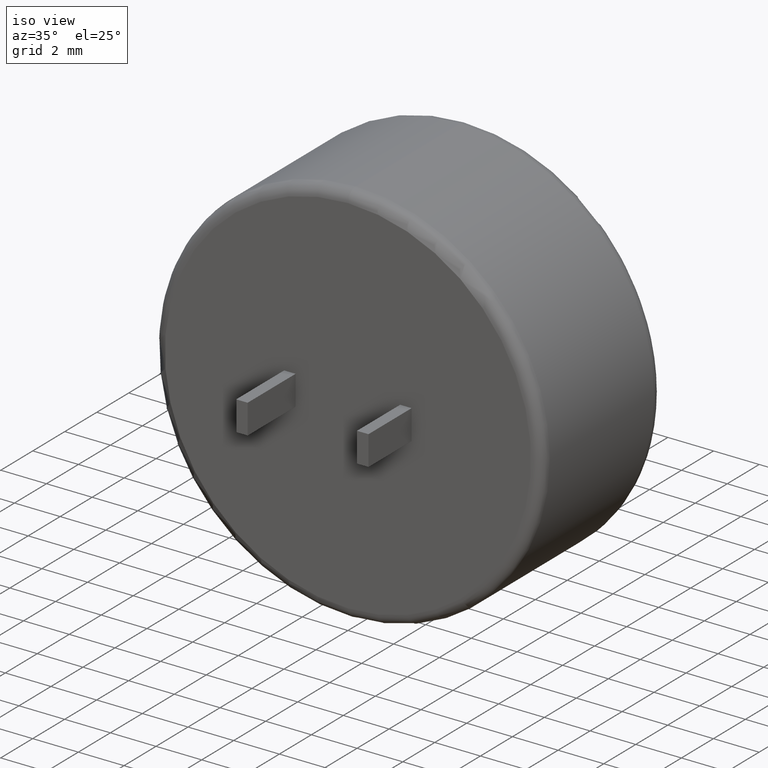
[diagram: clean part render]
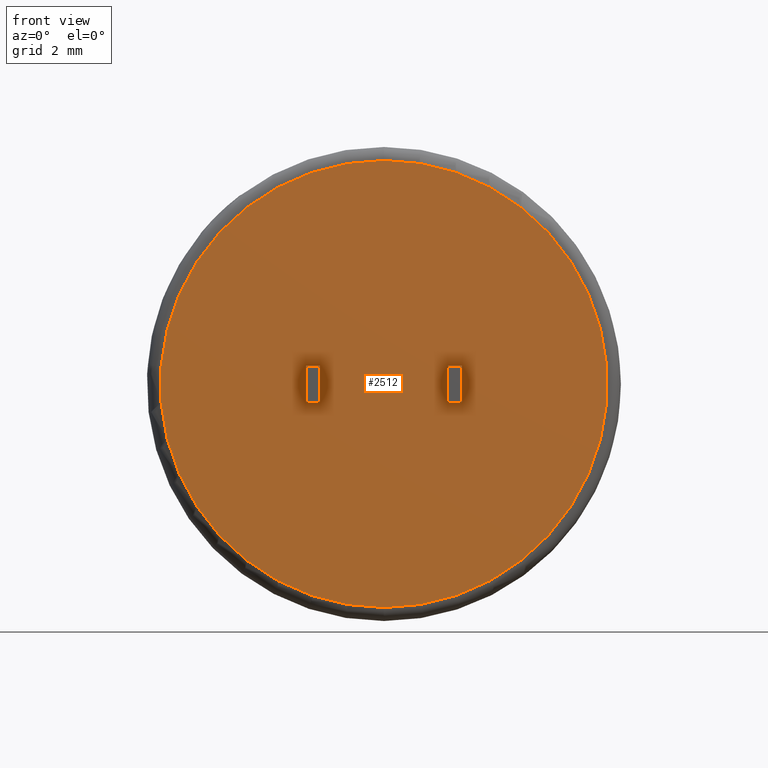
[diagram: tour spotlight — one face highlighted and labeled with its STEP entity id]
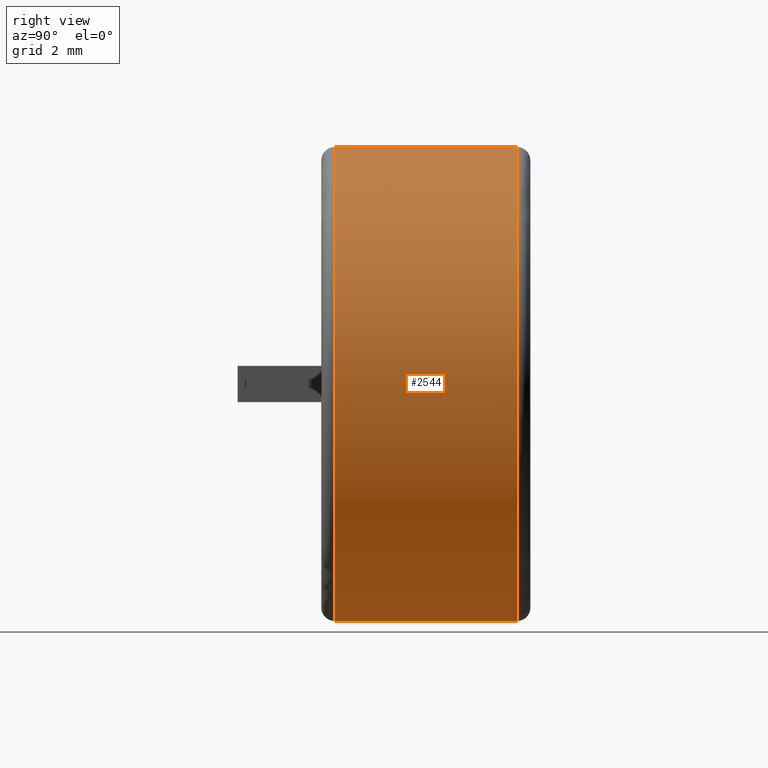
[diagram: tour spotlight — one face highlighted and labeled with its STEP entity id]
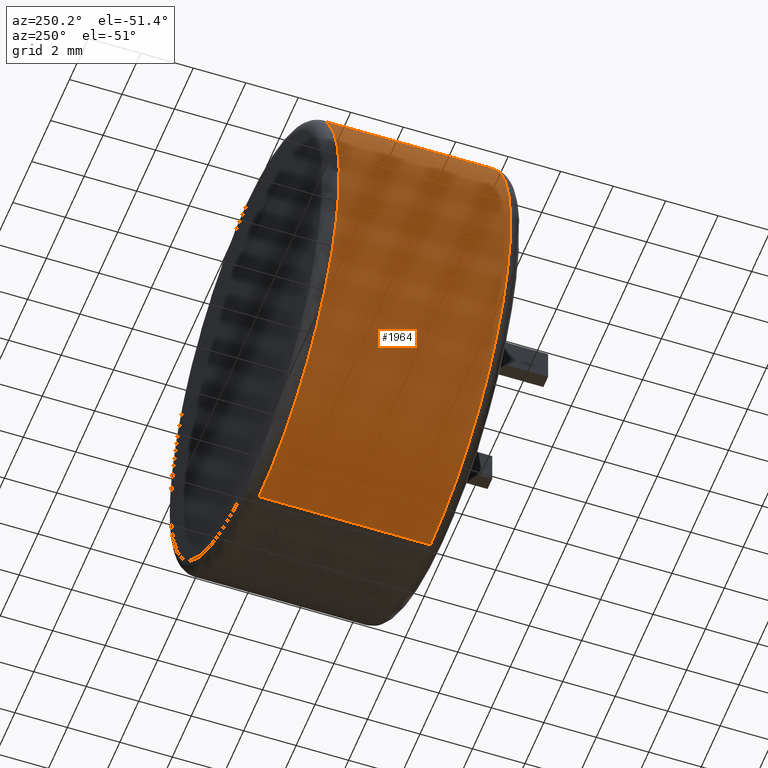
[diagram: tour spotlight — one face highlighted and labeled with its STEP entity id]
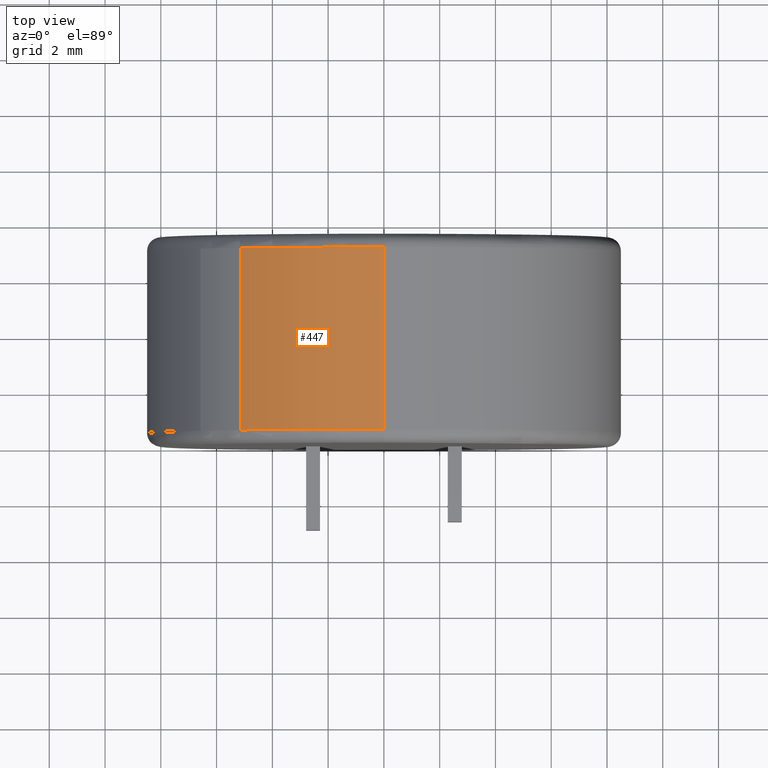
[diagram: tour spotlight — one face highlighted and labeled with its STEP entity id]
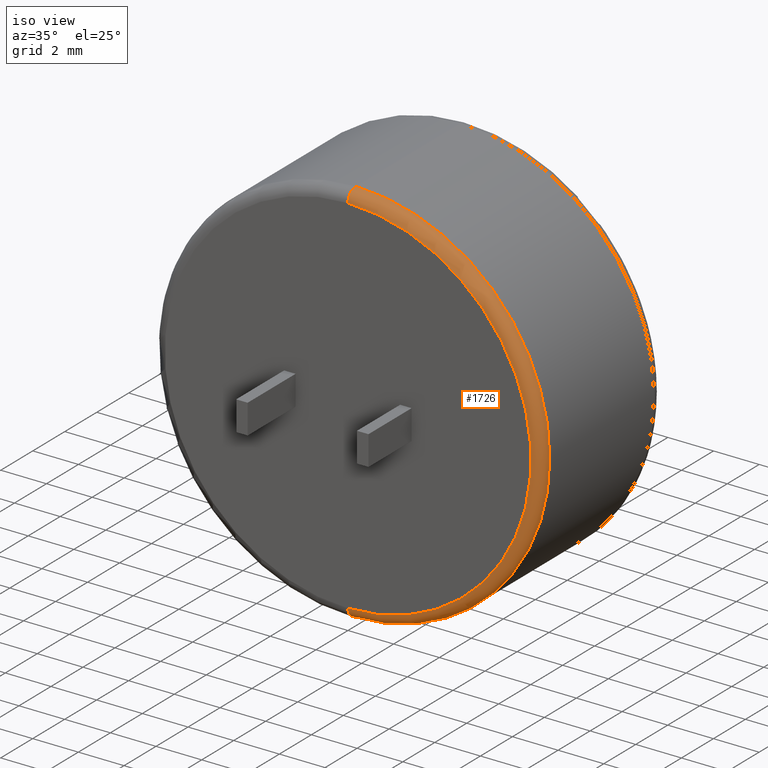
[diagram: tour spotlight — one face highlighted and labeled with its STEP entity id]
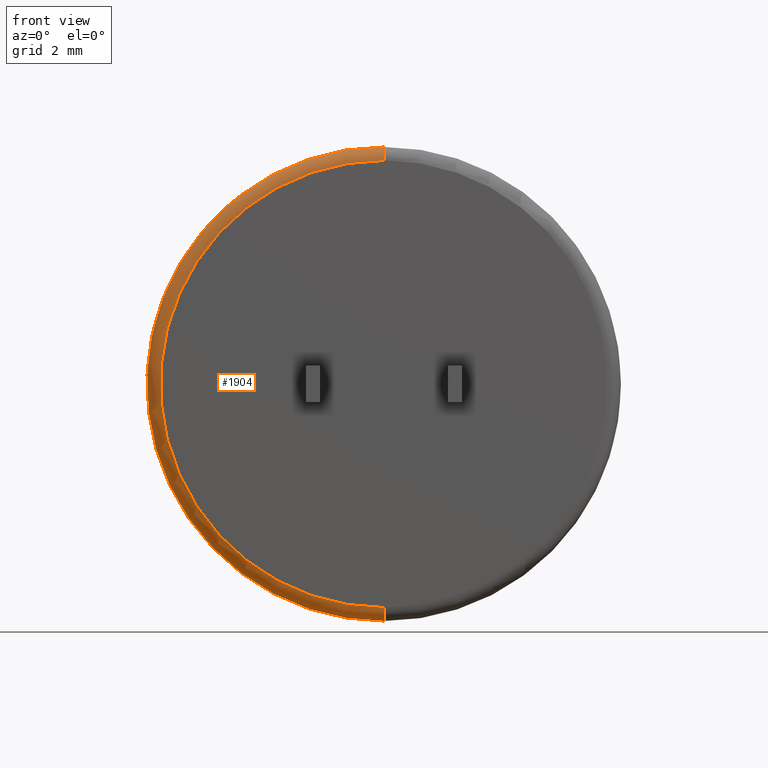
[diagram: tour spotlight — one face highlighted and labeled with its STEP entity id]
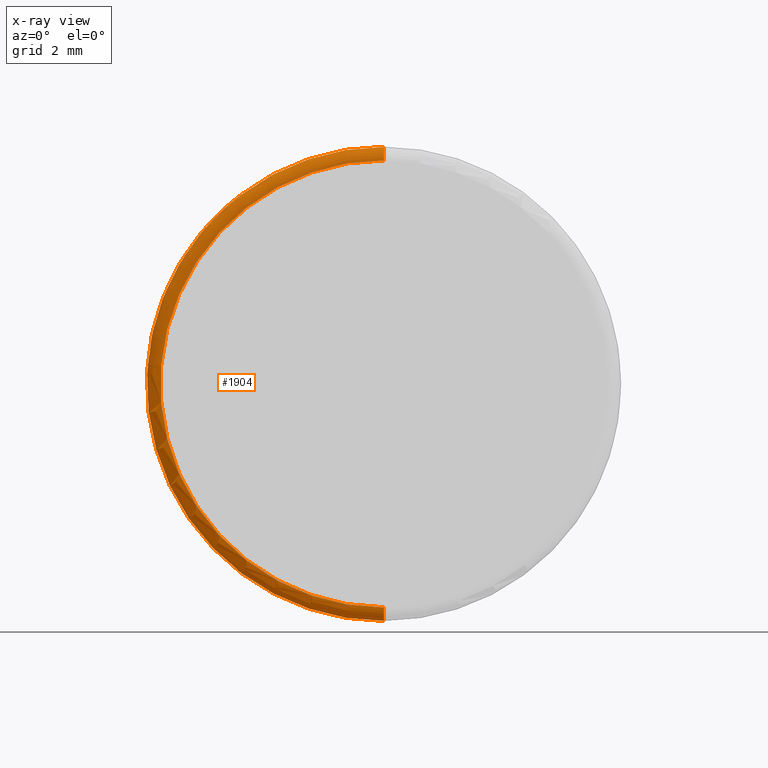
[diagram: x-ray of the same camera — body ghosted, this tour face saturated]
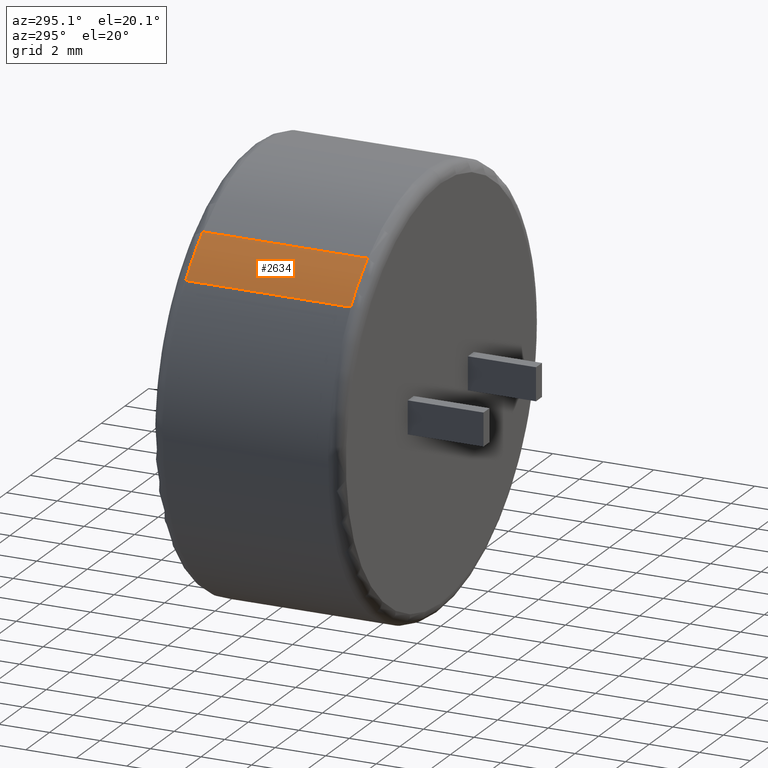
[diagram: tour spotlight — one face highlighted and labeled with its STEP entity id]
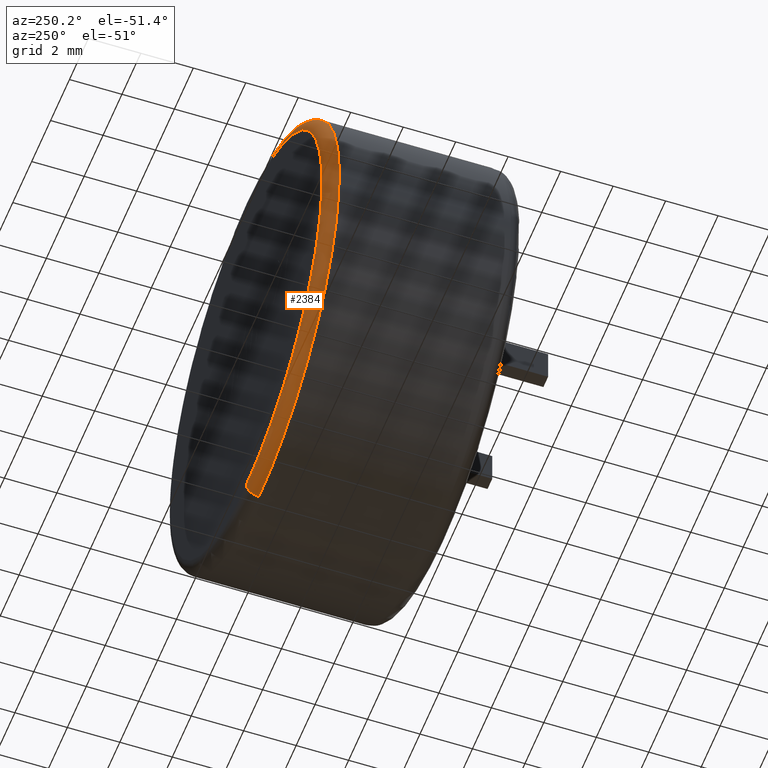
[diagram: tour spotlight — one face highlighted and labeled with its STEP entity id]
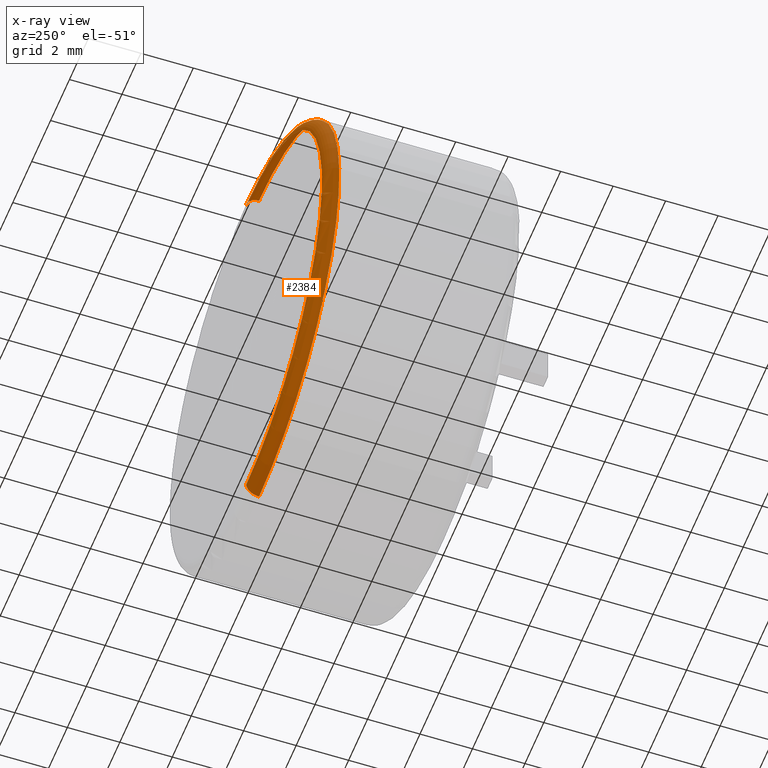
[diagram: x-ray of the same camera — body ghosted, this tour face saturated]
A machine part: a face-by-face anatomy tour. The part has 78 B-rep faces; the first image is the clean iso view, then the 8 largest visible faces are spotlighted one at a time (largest first), each with its STEP entity span.

Face 1 — front view, entity #2512. In plain terms, the highlighted planar face has unit normal (0, 1, 0).
Definition (entity closure, byte-faithful):
#73 = CARTESIAN_POINT ( 'NONE',  ( -2.289999999999999100, 0.0000000000000000000, 0.6500000000000053500 ) ) ;
#118 = DIRECTION ( 'NONE',  ( -0.0000000000000000000, -1.000000000000000000, -0.0000000000000000000 ) ) ;
#162 = VECTOR ( 'NONE', #1360, 1000.000000000000000 ) ;
#181 = VERTEX_POINT ( 'NONE', #73 ) ;
#193 = DIRECTION ( 'NONE',  ( 0.0000000000000000000, -0.0000000000000000000, -1.000000000000000000 ) ) ;
#203 = EDGE_CURVE ( 'NONE', #918, #1724, #2557, .T. ) ;
#208 = LINE ( 'NONE', #317, #1510 ) ;
#216 = ORIENTED_EDGE ( 'NONE', *, *, #1732, .F. ) ;
#229 = CARTESIAN_POINT ( 'NONE',  ( 2.290000000000000000, 0.0000000000000000000, -0.6500000000000031300 ) ) ;
#237 = EDGE_CURVE ( 'NONE', #1677, #1699, #1468, .T. ) ;
#288 = PLANE ( 'NONE',  #1837 ) ;
#316 = ORIENTED_EDGE ( 'NONE', *, *, #203, .F. ) ;
#317 = CARTESIAN_POINT ( 'NONE',  ( -2.789999999999999100, 0.0000000000000000000, 0.6500000000000053500 ) ) ;
#341 = FACE_BOUND ( 'NONE', #2668, .T. ) ;
#364 = ORIENTED_EDGE ( 'NONE', *, *, #709, .F. ) ;
#378 = VECTOR ( 'NONE', #2513, 1000.000000000000000 ) ;
#514 = CARTESIAN_POINT ( 'NONE',  ( 2.290000000000000000, 0.0000000000000000000, -0.6500000000000031300 ) ) ;
#535 = CARTESIAN_POINT ( 'NONE',  ( 0.0000000000000000000, 0.0000000000000000000, 0.0000000000000000000 ) ) ;
#571 = CARTESIAN_POINT ( 'NONE',  ( -2.789999999999999100, -0.0000000000000000000, -0.6499999999999945800 ) ) ;
#575 = LINE ( 'NONE', #1652, #2326 ) ;
#595 = CARTESIAN_POINT ( 'NONE',  ( 0.0000000000000000000, 0.0000000000000000000, 8.016250000000001200 ) ) ;
#657 = VERTEX_POINT ( 'NONE', #1430 ) ;
#681 = VERTEX_POINT ( 'NONE', #2664 ) ;
#709 = EDGE_CURVE ( 'NONE', #886, #918, #1898, .T. ) ;
#726 = EDGE_LOOP ( 'NONE', ( #1493, #2353 ) ) ;
#765 = CARTESIAN_POINT ( 'NONE',  ( 2.290000000000000000, 0.0000000000000000000, 0.6499999999999966900 ) ) ;
#774 = ORIENTED_EDGE ( 'NONE', *, *, #1592, .T. ) ;
#814 = ORIENTED_EDGE ( 'NONE', *, *, #1786, .F. ) ;
#839 = CARTESIAN_POINT ( 'NONE',  ( -2.789999999999999100, -0.0000000000000000000, -0.6499999999999945800 ) ) ;
#886 = VERTEX_POINT ( 'NONE', #229 ) ;
#888 = CARTESIAN_POINT ( 'NONE',  ( -2.289999999999999100, 0.0000000000000000000, -0.6499999999999945800 ) ) ;
#896 = CARTESIAN_POINT ( 'NONE',  ( 2.790000000000000000, 0.0000000000000000000, -0.6500000000000031300 ) ) ;
#918 = VERTEX_POINT ( 'NONE', #896 ) ;
#930 = DIRECTION ( 'NONE',  ( 1.000000000000000000, 0.0000000000000000000, 0.0000000000000000000 ) ) ;
#988 = ORIENTED_EDGE ( 'NONE', *, *, #237, .F. ) ;
#1092 = CARTESIAN_POINT ( 'NONE',  ( 2.290000000000000000, 0.0000000000000000000, 0.6499999999999966900 ) ) ;
#1174 = DIRECTION ( 'NONE',  ( 0.0000000000000000000, 0.0000000000000000000, 1.000000000000000000 ) ) ;
#1280 = EDGE_CURVE ( 'NONE', #681, #2381, #2567, .T. ) ;
#1360 = DIRECTION ( 'NONE',  ( -0.0000000000000000000, -0.0000000000000000000, -1.000000000000000000 ) ) ;
#1373 = LINE ( 'NONE', #1092, #1607 ) ;
#1407 = LINE ( 'NONE', #514, #162 ) ;
#1413 = EDGE_CURVE ( 'NONE', #657, #181, #208, .T. ) ;
#1415 = DIRECTION ( 'NONE',  ( 1.000000000000000000, 0.0000000000000000000, 0.0000000000000000000 ) ) ;
#1430 = CARTESIAN_POINT ( 'NONE',  ( -2.789999999999999100, 0.0000000000000000000, 0.6500000000000053500 ) ) ;
#1464 = FACE_OUTER_BOUND ( 'NONE', #726, .T. ) ;
#1468 = LINE ( 'NONE', #571, #2131 ) ;
#1493 = ORIENTED_EDGE ( 'NONE', *, *, #1969, .T. ) ;
#1510 = VECTOR ( 'NONE', #930, 1000.000000000000000 ) ;
#1592 = EDGE_CURVE ( 'NONE', #1677, #657, #1709, .T. ) ;
#1607 = VECTOR ( 'NONE', #1944, 1000.000000000000000 ) ;
#1609 = AXIS2_PLACEMENT_3D ( 'NONE', #1940, #1702, #2558 ) ;
#1652 = CARTESIAN_POINT ( 'NONE',  ( -2.289999999999999100, 0.0000000000000000000, 0.6500000000000053500 ) ) ;
#1677 = VERTEX_POINT ( 'NONE', #839 ) ;
#1699 = VERTEX_POINT ( 'NONE', #888 ) ;
#1702 = DIRECTION ( 'NONE',  ( -0.0000000000000000000, -1.000000000000000000, -0.0000000000000000000 ) ) ;
#1709 = LINE ( 'NONE', #2505, #378 ) ;
#1724 = VERTEX_POINT ( 'NONE', #2132 ) ;
#1732 = EDGE_CURVE ( 'NONE', #1724, #2280, #1373, .T. ) ;
#1780 = DIRECTION ( 'NONE',  ( 0.0000000000000000000, 1.000000000000000000, 0.0000000000000000000 ) ) ;
#1786 = EDGE_CURVE ( 'NONE', #2280, #886, #1407, .T. ) ;
#1808 = DIRECTION ( 'NONE',  ( 0.0000000000000000000, 0.0000000000000000000, 1.000000000000000000 ) ) ;
#1813 = CARTESIAN_POINT ( 'NONE',  ( 0.0000000000000000000, 0.0000000000000000000, 0.0000000000000000000 ) ) ;
#1827 = CARTESIAN_POINT ( 'NONE',  ( 2.290000000000000000, 0.0000000000000000000, -0.6500000000000031300 ) ) ;
#1837 = AXIS2_PLACEMENT_3D ( 'NONE', #535, #1780, #2234 ) ;
#1898 = LINE ( 'NONE', #1827, #2135 ) ;
#1940 = CARTESIAN_POINT ( 'NONE',  ( 0.0000000000000000000, 0.0000000000000000000, 0.0000000000000000000 ) ) ;
#1944 = DIRECTION ( 'NONE',  ( -1.000000000000000000, -0.0000000000000000000, -2.168404344971008900E-016 ) ) ;
#1969 = EDGE_CURVE ( 'NONE', #2381, #681, #2562, .T. ) ;
#2042 = CARTESIAN_POINT ( 'NONE',  ( 2.790000000000000000, 0.0000000000000000000, -3.154584513016134000E-015 ) ) ;
#2087 = ORIENTED_EDGE ( 'NONE', *, *, #2607, .T. ) ;
#2131 = VECTOR ( 'NONE', #2427, 1000.000000000000000 ) ;
#2132 = CARTESIAN_POINT ( 'NONE',  ( 2.790000000000000000, 0.0000000000000000000, 0.6499999999999968000 ) ) ;
#2135 = VECTOR ( 'NONE', #1415, 1000.000000000000000 ) ;
#2234 = DIRECTION ( 'NONE',  ( 0.0000000000000000000, -0.0000000000000000000, 1.000000000000000000 ) ) ;
#2258 = AXIS2_PLACEMENT_3D ( 'NONE', #1813, #118, #1808 ) ;
#2280 = VERTEX_POINT ( 'NONE', #765 ) ;
#2326 = VECTOR ( 'NONE', #193, 1000.000000000000000 ) ;
#2353 = ORIENTED_EDGE ( 'NONE', *, *, #1280, .T. ) ;
#2381 = VERTEX_POINT ( 'NONE', #595 ) ;
#2427 = DIRECTION ( 'NONE',  ( 1.000000000000000000, 0.0000000000000000000, 0.0000000000000000000 ) ) ;
#2453 = VECTOR ( 'NONE', #1174, 1000.000000000000000 ) ;
#2480 = ORIENTED_EDGE ( 'NONE', *, *, #1413, .T. ) ;
#2505 = CARTESIAN_POINT ( 'NONE',  ( -2.789999999999999100, 0.0000000000000000000, 5.403370410411914800E-015 ) ) ;
#2512 = ADVANCED_FACE ( 'NONE', ( #1464, #341, #2518 ), #288, .F. ) ;
#2513 = DIRECTION ( 'NONE',  ( 0.0000000000000000000, 0.0000000000000000000, 1.000000000000000000 ) ) ;
#2518 = FACE_BOUND ( 'NONE', #2535, .T. ) ;
#2535 = EDGE_LOOP ( 'NONE', ( #814, #216, #316, #364 ) ) ;
#2557 = LINE ( 'NONE', #2042, #2453 ) ;
#2558 = DIRECTION ( 'NONE',  ( 0.0000000000000000000, 0.0000000000000000000, 1.000000000000000000 ) ) ;
#2562 = CIRCLE ( 'NONE', #2258, 8.016250000000001200 ) ;
#2567 = CIRCLE ( 'NONE', #1609, 8.016250000000001200 ) ;
#2607 = EDGE_CURVE ( 'NONE', #181, #1699, #575, .T. ) ;
#2664 = CARTESIAN_POINT ( 'NONE',  ( 1.011328634820873600E-015, 0.0000000000000000000, -8.016250000000001200 ) ) ;
#2668 = EDGE_LOOP ( 'NONE', ( #774, #2480, #2087, #988 ) ) ;

Face 2 — right view, entity #2544. In plain terms, the highlighted cylindrical surface (partial cylindrical patch) has radius 8.5 mm, axis along (-0, -1, -0).
Definition (entity closure, byte-faithful):
#172 = AXIS2_PLACEMENT_3D ( 'NONE', #1580, #739, #1633 ) ;
#291 = CARTESIAN_POINT ( 'NONE',  ( 1.040949779275250100E-015, 7.500000000000000000, 8.500000000000000000 ) ) ;
#309 = CYLINDRICAL_SURFACE ( 'NONE', #172, 8.500000000000000000 ) ;
#410 = VECTOR ( 'NONE', #2016, 1000.000000000000000 ) ;
#445 = LINE ( 'NONE', #1746, #665 ) ;
#537 = CIRCLE ( 'NONE', #2289, 8.500000000000000000 ) ;
#654 = EDGE_LOOP ( 'NONE', ( #2549, #2640, #1614, #2332 ) ) ;
#665 = VECTOR ( 'NONE', #1103, 1000.000000000000000 ) ;
#739 = DIRECTION ( 'NONE',  ( -0.0000000000000000000, -1.000000000000000000, -0.0000000000000000000 ) ) ;
#797 = DIRECTION ( 'NONE',  ( 0.0000000000000000000, 0.0000000000000000000, 1.000000000000000000 ) ) ;
#973 = CIRCLE ( 'NONE', #2685, 8.500000000000000000 ) ;
#986 = CARTESIAN_POINT ( 'NONE',  ( 0.0000000000000000000, 0.4837499999999997900, 0.0000000000000000000 ) ) ;
#1013 = VERTEX_POINT ( 'NONE', #1957 ) ;
#1103 = DIRECTION ( 'NONE',  ( -0.0000000000000000000, -1.000000000000000000, -0.0000000000000000000 ) ) ;
#1168 = CARTESIAN_POINT ( 'NONE',  ( 0.0000000000000000000, 7.016250000000000300, -8.500000000000000000 ) ) ;
#1341 = FACE_OUTER_BOUND ( 'NONE', #654, .T. ) ;
#1388 = VERTEX_POINT ( 'NONE', #1168 ) ;
#1450 = EDGE_CURVE ( 'NONE', #1926, #2116, #973, .T. ) ;
#1474 = LINE ( 'NONE', #291, #410 ) ;
#1486 = DIRECTION ( 'NONE',  ( -0.0000000000000000000, -1.000000000000000000, -0.0000000000000000000 ) ) ;
#1580 = CARTESIAN_POINT ( 'NONE',  ( 0.0000000000000000000, 7.500000000000000000, 0.0000000000000000000 ) ) ;
#1614 = ORIENTED_EDGE ( 'NONE', *, *, #1450, .T. ) ;
#1633 = DIRECTION ( 'NONE',  ( 0.0000000000000000000, 0.0000000000000000000, -1.000000000000000000 ) ) ;
#1746 = CARTESIAN_POINT ( 'NONE',  ( 0.0000000000000000000, 7.500000000000000000, -8.500000000000000000 ) ) ;
#1767 = EDGE_CURVE ( 'NONE', #1388, #2116, #445, .T. ) ;
#1926 = VERTEX_POINT ( 'NONE', #1973 ) ;
#1957 = CARTESIAN_POINT ( 'NONE',  ( 1.040949779275250100E-015, 7.016250000000000300, 8.500000000000000000 ) ) ;
#1973 = CARTESIAN_POINT ( 'NONE',  ( 1.040949779275250100E-015, 0.4837499999999997900, 8.500000000000000000 ) ) ;
#2016 = DIRECTION ( 'NONE',  ( -0.0000000000000000000, -1.000000000000000000, -0.0000000000000000000 ) ) ;
#2036 = EDGE_CURVE ( 'NONE', #1388, #1013, #537, .T. ) ;
#2078 = DIRECTION ( 'NONE',  ( 0.0000000000000000000, 1.000000000000000000, 0.0000000000000000000 ) ) ;
#2116 = VERTEX_POINT ( 'NONE', #2271 ) ;
#2271 = CARTESIAN_POINT ( 'NONE',  ( 0.0000000000000000000, 0.4837499999999997900, -8.500000000000000000 ) ) ;
#2289 = AXIS2_PLACEMENT_3D ( 'NONE', #2336, #1486, #2541 ) ;
#2332 = ORIENTED_EDGE ( 'NONE', *, *, #1767, .F. ) ;
#2336 = CARTESIAN_POINT ( 'NONE',  ( 0.0000000000000000000, 7.016250000000000300, 0.0000000000000000000 ) ) ;
#2541 = DIRECTION ( 'NONE',  ( 0.0000000000000000000, 0.0000000000000000000, 1.000000000000000000 ) ) ;
#2544 = ADVANCED_FACE ( 'NONE', ( #1341 ), #309, .T. ) ;
#2549 = ORIENTED_EDGE ( 'NONE', *, *, #2036, .T. ) ;
#2640 = ORIENTED_EDGE ( 'NONE', *, *, #2726, .T. ) ;
#2685 = AXIS2_PLACEMENT_3D ( 'NONE', #986, #2078, #797 ) ;
#2726 = EDGE_CURVE ( 'NONE', #1013, #1926, #1474, .T. ) ;

Face 3 — auxiliary view, entity #1964. In plain terms, the highlighted cylindrical surface (partial cylindrical patch) has radius 8.5 mm, axis along (-0, -1, -0).
Definition (entity closure, byte-faithful):
#43 = DIRECTION ( 'NONE',  ( 0.0000000000000000000, 0.0000000000000000000, 1.000000000000000000 ) ) ;
#103 = DIRECTION ( 'NONE',  ( -0.0000000000000000000, -1.000000000000000000, -0.0000000000000000000 ) ) ;
#106 = AXIS2_PLACEMENT_3D ( 'NONE', #1163, #103, #1616 ) ;
#114 = DIRECTION ( 'NONE',  ( 0.0000000000000000000, 0.0000000000000000000, 1.000000000000000000 ) ) ;
#303 = CIRCLE ( 'NONE', #2115, 8.500000000000000000 ) ;
#305 = EDGE_LOOP ( 'NONE', ( #1246, #1346, #714, #2308 ) ) ;
#445 = LINE ( 'NONE', #1746, #665 ) ;
#615 = VERTEX_POINT ( 'NONE', #1586 ) ;
#665 = VECTOR ( 'NONE', #1103, 1000.000000000000000 ) ;
#714 = ORIENTED_EDGE ( 'NONE', *, *, #2294, .T. ) ;
#750 = CARTESIAN_POINT ( 'NONE',  ( 0.0000000000000000000, 0.4837499999999997900, 0.0000000000000000000 ) ) ;
#967 = VECTOR ( 'NONE', #1928, 1000.000000000000000 ) ;
#972 = DIRECTION ( 'NONE',  ( 0.0000000000000000000, 1.000000000000000000, 0.0000000000000000000 ) ) ;
#1103 = DIRECTION ( 'NONE',  ( -0.0000000000000000000, -1.000000000000000000, -0.0000000000000000000 ) ) ;
#1117 = CARTESIAN_POINT ( 'NONE',  ( 0.0000000000000000000, 7.016250000000000300, 0.0000000000000000000 ) ) ;
#1163 = CARTESIAN_POINT ( 'NONE',  ( 0.0000000000000000000, 7.500000000000000000, 0.0000000000000000000 ) ) ;
#1168 = CARTESIAN_POINT ( 'NONE',  ( 0.0000000000000000000, 7.016250000000000300, -8.500000000000000000 ) ) ;
#1246 = ORIENTED_EDGE ( 'NONE', *, *, #2264, .T. ) ;
#1346 = ORIENTED_EDGE ( 'NONE', *, *, #1767, .T. ) ;
#1388 = VERTEX_POINT ( 'NONE', #1168 ) ;
#1586 = CARTESIAN_POINT ( 'NONE',  ( -6.574317553280828900, 0.4837499999999997900, 5.387796275716408600 ) ) ;
#1596 = CIRCLE ( 'NONE', #2069, 8.500000000000000000 ) ;
#1616 = DIRECTION ( 'NONE',  ( 0.0000000000000000000, 0.0000000000000000000, -1.000000000000000000 ) ) ;
#1675 = CARTESIAN_POINT ( 'NONE',  ( -6.574317553280827100, 7.016250000000000300, 5.387796275716410400 ) ) ;
#1700 = EDGE_CURVE ( 'NONE', #2319, #615, #2170, .T. ) ;
#1746 = CARTESIAN_POINT ( 'NONE',  ( 0.0000000000000000000, 7.500000000000000000, -8.500000000000000000 ) ) ;
#1765 = CYLINDRICAL_SURFACE ( 'NONE', #106, 8.500000000000000000 ) ;
#1767 = EDGE_CURVE ( 'NONE', #1388, #2116, #445, .T. ) ;
#1928 = DIRECTION ( 'NONE',  ( 0.0000000000000000000, -1.000000000000000000, 0.0000000000000000000 ) ) ;
#1964 = ADVANCED_FACE ( 'NONE', ( #2359 ), #1765, .T. ) ;
#2069 = AXIS2_PLACEMENT_3D ( 'NONE', #750, #972, #114 ) ;
#2115 = AXIS2_PLACEMENT_3D ( 'NONE', #1117, #2609, #43 ) ;
#2116 = VERTEX_POINT ( 'NONE', #2271 ) ;
#2170 = LINE ( 'NONE', #2328, #967 ) ;
#2264 = EDGE_CURVE ( 'NONE', #2319, #1388, #303, .T. ) ;
#2271 = CARTESIAN_POINT ( 'NONE',  ( 0.0000000000000000000, 0.4837499999999997900, -8.500000000000000000 ) ) ;
#2294 = EDGE_CURVE ( 'NONE', #2116, #615, #1596, .T. ) ;
#2308 = ORIENTED_EDGE ( 'NONE', *, *, #1700, .F. ) ;
#2319 = VERTEX_POINT ( 'NONE', #1675 ) ;
#2328 = CARTESIAN_POINT ( 'NONE',  ( -6.574317553280827100, 7.016249999999998500, 5.387796275716410400 ) ) ;
#2359 = FACE_OUTER_BOUND ( 'NONE', #305, .T. ) ;
#2609 = DIRECTION ( 'NONE',  ( -0.0000000000000000000, -1.000000000000000000, -0.0000000000000000000 ) ) ;

Face 4 — top view, entity #447. In plain terms, the highlighted cylindrical surface (partial cylindrical patch) has radius 8.5 mm, axis along (-0, -1, -0).
Definition (entity closure, byte-faithful):
#33 = ORIENTED_EDGE ( 'NONE', *, *, #2726, .F. ) ;
#45 = CYLINDRICAL_SURFACE ( 'NONE', #2248, 8.500000000000000000 ) ;
#141 = EDGE_CURVE ( 'NONE', #1013, #1387, #2590, .T. ) ;
#260 = VERTEX_POINT ( 'NONE', #363 ) ;
#291 = CARTESIAN_POINT ( 'NONE',  ( 1.040949779275250100E-015, 7.500000000000000000, 8.500000000000000000 ) ) ;
#332 = EDGE_CURVE ( 'NONE', #260, #1387, #2418, .T. ) ;
#363 = CARTESIAN_POINT ( 'NONE',  ( -5.137115991185747400, 0.4837499999999997900, 6.772004082478368000 ) ) ;
#410 = VECTOR ( 'NONE', #2016, 1000.000000000000000 ) ;
#437 = FACE_OUTER_BOUND ( 'NONE', #1187, .T. ) ;
#447 = ADVANCED_FACE ( 'NONE', ( #437 ), #45, .T. ) ;
#483 = DIRECTION ( 'NONE',  ( 0.0000000000000000000, 0.0000000000000000000, -1.000000000000000000 ) ) ;
#513 = CARTESIAN_POINT ( 'NONE',  ( 0.0000000000000000000, 7.016250000000000300, 0.0000000000000000000 ) ) ;
#538 = CIRCLE ( 'NONE', #1230, 8.500000000000000000 ) ;
#676 = DIRECTION ( 'NONE',  ( -0.0000000000000000000, -1.000000000000000000, -0.0000000000000000000 ) ) ;
#716 = DIRECTION ( 'NONE',  ( 0.0000000000000000000, 0.0000000000000000000, 1.000000000000000000 ) ) ;
#718 = ORIENTED_EDGE ( 'NONE', *, *, #2712, .T. ) ;
#843 = CARTESIAN_POINT ( 'NONE',  ( -5.137115991185754500, 0.4837500000000006800, 6.772004082478362700 ) ) ;
#1013 = VERTEX_POINT ( 'NONE', #1957 ) ;
#1187 = EDGE_LOOP ( 'NONE', ( #33, #1400, #1320, #718 ) ) ;
#1230 = AXIS2_PLACEMENT_3D ( 'NONE', #2644, #2009, #1565 ) ;
#1310 = CARTESIAN_POINT ( 'NONE',  ( 0.0000000000000000000, 7.500000000000000000, 0.0000000000000000000 ) ) ;
#1320 = ORIENTED_EDGE ( 'NONE', *, *, #332, .F. ) ;
#1387 = VERTEX_POINT ( 'NONE', #1401 ) ;
#1400 = ORIENTED_EDGE ( 'NONE', *, *, #141, .T. ) ;
#1401 = CARTESIAN_POINT ( 'NONE',  ( -5.137115991185754500, 7.016250000000000300, 6.772004082478362700 ) ) ;
#1474 = LINE ( 'NONE', #291, #410 ) ;
#1565 = DIRECTION ( 'NONE',  ( 0.0000000000000000000, 0.0000000000000000000, 1.000000000000000000 ) ) ;
#1703 = DIRECTION ( 'NONE',  ( 0.0000000000000000000, 1.000000000000000000, 0.0000000000000000000 ) ) ;
#1861 = VECTOR ( 'NONE', #1703, 1000.000000000000000 ) ;
#1926 = VERTEX_POINT ( 'NONE', #1973 ) ;
#1935 = AXIS2_PLACEMENT_3D ( 'NONE', #513, #2011, #716 ) ;
#1957 = CARTESIAN_POINT ( 'NONE',  ( 1.040949779275250100E-015, 7.016250000000000300, 8.500000000000000000 ) ) ;
#1973 = CARTESIAN_POINT ( 'NONE',  ( 1.040949779275250100E-015, 0.4837499999999997900, 8.500000000000000000 ) ) ;
#2009 = DIRECTION ( 'NONE',  ( 0.0000000000000000000, 1.000000000000000000, 0.0000000000000000000 ) ) ;
#2011 = DIRECTION ( 'NONE',  ( -0.0000000000000000000, -1.000000000000000000, -0.0000000000000000000 ) ) ;
#2016 = DIRECTION ( 'NONE',  ( -0.0000000000000000000, -1.000000000000000000, -0.0000000000000000000 ) ) ;
#2248 = AXIS2_PLACEMENT_3D ( 'NONE', #1310, #676, #483 ) ;
#2418 = LINE ( 'NONE', #843, #1861 ) ;
#2590 = CIRCLE ( 'NONE', #1935, 8.500000000000000000 ) ;
#2644 = CARTESIAN_POINT ( 'NONE',  ( 0.0000000000000000000, 0.4837499999999997900, 0.0000000000000000000 ) ) ;
#2712 = EDGE_CURVE ( 'NONE', #260, #1926, #538, .T. ) ;
#2726 = EDGE_CURVE ( 'NONE', #1013, #1926, #1474, .T. ) ;

Face 5 — iso view, entity #1726. In plain terms, the highlighted toroidal blend (fillet) surface has major radius 8.0163 mm and minor (blend) radius 0.4838 mm.
Definition (entity closure, byte-faithful):
#167 = TOROIDAL_SURFACE ( 'NONE', #1073, 8.016250000000001200, 0.4837500000000000100 ) ;
#428 = DIRECTION ( 'NONE',  ( 1.224646799147353700E-016, 0.0000000000000000000, -1.000000000000000000 ) ) ;
#491 = ORIENTED_EDGE ( 'NONE', *, *, #1280, .F. ) ;
#595 = CARTESIAN_POINT ( 'NONE',  ( 0.0000000000000000000, 0.0000000000000000000, 8.016250000000001200 ) ) ;
#622 = ORIENTED_EDGE ( 'NONE', *, *, #945, .F. ) ;
#659 = DIRECTION ( 'NONE',  ( 1.000000000000000000, -0.0000000000000000000, 1.224646799147353200E-016 ) ) ;
#681 = VERTEX_POINT ( 'NONE', #2664 ) ;
#797 = DIRECTION ( 'NONE',  ( 0.0000000000000000000, 0.0000000000000000000, 1.000000000000000000 ) ) ;
#945 = EDGE_CURVE ( 'NONE', #2381, #1926, #2357, .T. ) ;
#973 = CIRCLE ( 'NONE', #2685, 8.500000000000000000 ) ;
#986 = CARTESIAN_POINT ( 'NONE',  ( 0.0000000000000000000, 0.4837499999999997900, 0.0000000000000000000 ) ) ;
#1034 = CIRCLE ( 'NONE', #2101, 0.4837499999999997900 ) ;
#1073 = AXIS2_PLACEMENT_3D ( 'NONE', #2150, #2363, #1740 ) ;
#1085 = DIRECTION ( 'NONE',  ( -1.000000000000000000, 0.0000000000000000000, 0.0000000000000000000 ) ) ;
#1142 = EDGE_LOOP ( 'NONE', ( #491, #2226, #2548, #622 ) ) ;
#1280 = EDGE_CURVE ( 'NONE', #681, #2381, #2567, .T. ) ;
#1286 = EDGE_CURVE ( 'NONE', #681, #2116, #1034, .T. ) ;
#1450 = EDGE_CURVE ( 'NONE', #1926, #2116, #973, .T. ) ;
#1609 = AXIS2_PLACEMENT_3D ( 'NONE', #1940, #1702, #2558 ) ;
#1702 = DIRECTION ( 'NONE',  ( -0.0000000000000000000, -1.000000000000000000, -0.0000000000000000000 ) ) ;
#1718 = CARTESIAN_POINT ( 'NONE',  ( 9.817074903664972700E-016, 0.4837499999999997900, -8.016250000000001200 ) ) ;
#1726 = ADVANCED_FACE ( 'NONE', ( #2630 ), #167, .T. ) ;
#1740 = DIRECTION ( 'NONE',  ( 0.0000000000000000000, 0.0000000000000000000, 1.000000000000000000 ) ) ;
#1926 = VERTEX_POINT ( 'NONE', #1973 ) ;
#1940 = CARTESIAN_POINT ( 'NONE',  ( 0.0000000000000000000, 0.0000000000000000000, 0.0000000000000000000 ) ) ;
#1970 = DIRECTION ( 'NONE',  ( 0.0000000000000000000, 0.0000000000000000000, 1.000000000000000000 ) ) ;
#1973 = CARTESIAN_POINT ( 'NONE',  ( 1.040949779275250100E-015, 0.4837499999999997900, 8.500000000000000000 ) ) ;
#2078 = DIRECTION ( 'NONE',  ( 0.0000000000000000000, 1.000000000000000000, 0.0000000000000000000 ) ) ;
#2101 = AXIS2_PLACEMENT_3D ( 'NONE', #1718, #659, #428 ) ;
#2116 = VERTEX_POINT ( 'NONE', #2271 ) ;
#2150 = CARTESIAN_POINT ( 'NONE',  ( 0.0000000000000000000, 0.4837499999999997900, 0.0000000000000000000 ) ) ;
#2226 = ORIENTED_EDGE ( 'NONE', *, *, #1286, .T. ) ;
#2271 = CARTESIAN_POINT ( 'NONE',  ( 0.0000000000000000000, 0.4837499999999997900, -8.500000000000000000 ) ) ;
#2357 = CIRCLE ( 'NONE', #2450, 0.4837499999999997900 ) ;
#2360 = CARTESIAN_POINT ( 'NONE',  ( 0.0000000000000000000, 0.4837499999999997900, 8.016250000000001200 ) ) ;
#2363 = DIRECTION ( 'NONE',  ( 0.0000000000000000000, 1.000000000000000000, 0.0000000000000000000 ) ) ;
#2381 = VERTEX_POINT ( 'NONE', #595 ) ;
#2450 = AXIS2_PLACEMENT_3D ( 'NONE', #2360, #1085, #1970 ) ;
#2548 = ORIENTED_EDGE ( 'NONE', *, *, #1450, .F. ) ;
#2558 = DIRECTION ( 'NONE',  ( 0.0000000000000000000, 0.0000000000000000000, 1.000000000000000000 ) ) ;
#2567 = CIRCLE ( 'NONE', #1609, 8.016250000000001200 ) ;
#2630 = FACE_OUTER_BOUND ( 'NONE', #1142, .T. ) ;
#2664 = CARTESIAN_POINT ( 'NONE',  ( 1.011328634820873600E-015, 0.0000000000000000000, -8.016250000000001200 ) ) ;
#2685 = AXIS2_PLACEMENT_3D ( 'NONE', #986, #2078, #797 ) ;

Face 6 — front view, entity #1904. An x-ray twin of the same camera follows (body ghosted, this face saturated) — the face is partly hidden behind the body. In plain terms, the highlighted toroidal blend (fillet) surface has major radius 8.0163 mm and minor (blend) radius 0.4838 mm.
Definition (entity closure, byte-faithful):
#31 = DIRECTION ( 'NONE',  ( 0.0000000000000000000, 1.000000000000000000, 0.0000000000000000000 ) ) ;
#114 = DIRECTION ( 'NONE',  ( 0.0000000000000000000, 0.0000000000000000000, 1.000000000000000000 ) ) ;
#118 = DIRECTION ( 'NONE',  ( -0.0000000000000000000, -1.000000000000000000, -0.0000000000000000000 ) ) ;
#151 = AXIS2_PLACEMENT_3D ( 'NONE', #2375, #31, #664 ) ;
#260 = VERTEX_POINT ( 'NONE', #363 ) ;
#294 = DIRECTION ( 'NONE',  ( 0.0000000000000000000, 1.000000000000000000, 0.0000000000000000000 ) ) ;
#298 = ORIENTED_EDGE ( 'NONE', *, *, #1286, .F. ) ;
#363 = CARTESIAN_POINT ( 'NONE',  ( -5.137115991185747400, 0.4837499999999997900, 6.772004082478368000 ) ) ;
#405 = ORIENTED_EDGE ( 'NONE', *, *, #2294, .F. ) ;
#428 = DIRECTION ( 'NONE',  ( 1.224646799147353700E-016, 0.0000000000000000000, -1.000000000000000000 ) ) ;
#538 = CIRCLE ( 'NONE', #1230, 8.500000000000000000 ) ;
#595 = CARTESIAN_POINT ( 'NONE',  ( 0.0000000000000000000, 0.0000000000000000000, 8.016250000000001200 ) ) ;
#596 = ORIENTED_EDGE ( 'NONE', *, *, #2712, .F. ) ;
#615 = VERTEX_POINT ( 'NONE', #1586 ) ;
#625 = ORIENTED_EDGE ( 'NONE', *, *, #1969, .F. ) ;
#659 = DIRECTION ( 'NONE',  ( 1.000000000000000000, -0.0000000000000000000, 1.224646799147353200E-016 ) ) ;
#664 = DIRECTION ( 'NONE',  ( 0.0000000000000000000, 0.0000000000000000000, 1.000000000000000000 ) ) ;
#681 = VERTEX_POINT ( 'NONE', #2664 ) ;
#690 = ORIENTED_EDGE ( 'NONE', *, *, #2206, .F. ) ;
#721 = CIRCLE ( 'NONE', #151, 8.500000000000000000 ) ;
#750 = CARTESIAN_POINT ( 'NONE',  ( 0.0000000000000000000, 0.4837499999999997900, 0.0000000000000000000 ) ) ;
#766 = TOROIDAL_SURFACE ( 'NONE', #2155, 8.016250000000001200, 0.4837500000000000100 ) ;
#945 = EDGE_CURVE ( 'NONE', #2381, #1926, #2357, .T. ) ;
#972 = DIRECTION ( 'NONE',  ( 0.0000000000000000000, 1.000000000000000000, 0.0000000000000000000 ) ) ;
#1034 = CIRCLE ( 'NONE', #2101, 0.4837499999999997900 ) ;
#1085 = DIRECTION ( 'NONE',  ( -1.000000000000000000, 0.0000000000000000000, 0.0000000000000000000 ) ) ;
#1230 = AXIS2_PLACEMENT_3D ( 'NONE', #2644, #2009, #1565 ) ;
#1286 = EDGE_CURVE ( 'NONE', #681, #2116, #1034, .T. ) ;
#1438 = FACE_OUTER_BOUND ( 'NONE', #2024, .T. ) ;
#1565 = DIRECTION ( 'NONE',  ( 0.0000000000000000000, 0.0000000000000000000, 1.000000000000000000 ) ) ;
#1586 = CARTESIAN_POINT ( 'NONE',  ( -6.574317553280828900, 0.4837499999999997900, 5.387796275716408600 ) ) ;
#1596 = CIRCLE ( 'NONE', #2069, 8.500000000000000000 ) ;
#1718 = CARTESIAN_POINT ( 'NONE',  ( 9.817074903664972700E-016, 0.4837499999999997900, -8.016250000000001200 ) ) ;
#1797 = CARTESIAN_POINT ( 'NONE',  ( 0.0000000000000000000, 0.4837499999999997900, 0.0000000000000000000 ) ) ;
#1808 = DIRECTION ( 'NONE',  ( 0.0000000000000000000, 0.0000000000000000000, 1.000000000000000000 ) ) ;
#1813 = CARTESIAN_POINT ( 'NONE',  ( 0.0000000000000000000, 0.0000000000000000000, 0.0000000000000000000 ) ) ;
#1904 = ADVANCED_FACE ( 'NONE', ( #1438 ), #766, .T. ) ;
#1926 = VERTEX_POINT ( 'NONE', #1973 ) ;
#1969 = EDGE_CURVE ( 'NONE', #2381, #681, #2562, .T. ) ;
#1970 = DIRECTION ( 'NONE',  ( 0.0000000000000000000, 0.0000000000000000000, 1.000000000000000000 ) ) ;
#1973 = CARTESIAN_POINT ( 'NONE',  ( 1.040949779275250100E-015, 0.4837499999999997900, 8.500000000000000000 ) ) ;
#2009 = DIRECTION ( 'NONE',  ( 0.0000000000000000000, 1.000000000000000000, 0.0000000000000000000 ) ) ;
#2024 = EDGE_LOOP ( 'NONE', ( #298, #625, #2106, #596, #690, #405 ) ) ;
#2069 = AXIS2_PLACEMENT_3D ( 'NONE', #750, #972, #114 ) ;
#2101 = AXIS2_PLACEMENT_3D ( 'NONE', #1718, #659, #428 ) ;
#2106 = ORIENTED_EDGE ( 'NONE', *, *, #945, .T. ) ;
#2116 = VERTEX_POINT ( 'NONE', #2271 ) ;
#2155 = AXIS2_PLACEMENT_3D ( 'NONE', #1797, #294, #2458 ) ;
#2206 = EDGE_CURVE ( 'NONE', #615, #260, #721, .T. ) ;
#2258 = AXIS2_PLACEMENT_3D ( 'NONE', #1813, #118, #1808 ) ;
#2271 = CARTESIAN_POINT ( 'NONE',  ( 0.0000000000000000000, 0.4837499999999997900, -8.500000000000000000 ) ) ;
#2294 = EDGE_CURVE ( 'NONE', #2116, #615, #1596, .T. ) ;
#2357 = CIRCLE ( 'NONE', #2450, 0.4837499999999997900 ) ;
#2360 = CARTESIAN_POINT ( 'NONE',  ( 0.0000000000000000000, 0.4837499999999997900, 8.016250000000001200 ) ) ;
#2375 = CARTESIAN_POINT ( 'NONE',  ( 0.0000000000000000000, 0.4837499999999997900, 0.0000000000000000000 ) ) ;
#2381 = VERTEX_POINT ( 'NONE', #595 ) ;
#2450 = AXIS2_PLACEMENT_3D ( 'NONE', #2360, #1085, #1970 ) ;
#2458 = DIRECTION ( 'NONE',  ( 0.0000000000000000000, 0.0000000000000000000, 1.000000000000000000 ) ) ;
#2562 = CIRCLE ( 'NONE', #2258, 8.016250000000001200 ) ;
#2644 = CARTESIAN_POINT ( 'NONE',  ( 0.0000000000000000000, 0.4837499999999997900, 0.0000000000000000000 ) ) ;
#2664 = CARTESIAN_POINT ( 'NONE',  ( 1.011328634820873600E-015, 0.0000000000000000000, -8.016250000000001200 ) ) ;
#2712 = EDGE_CURVE ( 'NONE', #260, #1926, #538, .T. ) ;

Face 7 — auxiliary view, entity #2634. In plain terms, the highlighted cylindrical surface (partial cylindrical patch) has radius 8.51 mm, axis along (-0, -1, -0).
Definition (entity closure, byte-faithful):
#80 = DIRECTION ( 'NONE',  ( 0.0000000000000000000, 0.0000000000000000000, -1.000000000000000000 ) ) ;
#160 = ORIENTED_EDGE ( 'NONE', *, *, #1626, .T. ) ;
#170 = CARTESIAN_POINT ( 'NONE',  ( -5.143159657057736900, 7.500000000000000000, 6.779971146104808900 ) ) ;
#313 = LINE ( 'NONE', #1237, #1067 ) ;
#432 = EDGE_LOOP ( 'NONE', ( #2508, #2122, #160, #1556 ) ) ;
#631 = CARTESIAN_POINT ( 'NONE',  ( -5.143159657057736900, 7.016250000000000300, 6.779971146104808900 ) ) ;
#643 = DIRECTION ( 'NONE',  ( 0.0000000000000000000, 0.0000000000000000000, -1.000000000000000000 ) ) ;
#799 = AXIS2_PLACEMENT_3D ( 'NONE', #1009, #1273, #643 ) ;
#865 = FACE_OUTER_BOUND ( 'NONE', #432, .T. ) ;
#1009 = CARTESIAN_POINT ( 'NONE',  ( 0.0000000000000000000, 7.500000000000000000, 0.0000000000000000000 ) ) ;
#1022 = VERTEX_POINT ( 'NONE', #2613 ) ;
#1028 = CIRCLE ( 'NONE', #1238, 8.509999999999999800 ) ;
#1067 = VECTOR ( 'NONE', #2719, 1000.000000000000000 ) ;
#1154 = VERTEX_POINT ( 'NONE', #631 ) ;
#1237 = CARTESIAN_POINT ( 'NONE',  ( -6.582052044519981500, 7.500000000000000000, 5.394134859570192100 ) ) ;
#1238 = AXIS2_PLACEMENT_3D ( 'NONE', #1581, #2623, #80 ) ;
#1273 = DIRECTION ( 'NONE',  ( -0.0000000000000000000, -1.000000000000000000, -0.0000000000000000000 ) ) ;
#1436 = CARTESIAN_POINT ( 'NONE',  ( -5.143159657057720900, 0.4837499999999997900, 6.779971146104820400 ) ) ;
#1448 = AXIS2_PLACEMENT_3D ( 'NONE', #2327, #1504, #2693 ) ;
#1504 = DIRECTION ( 'NONE',  ( 0.0000000000000000000, 1.000000000000000000, 0.0000000000000000000 ) ) ;
#1556 = ORIENTED_EDGE ( 'NONE', *, *, #2756, .T. ) ;
#1581 = CARTESIAN_POINT ( 'NONE',  ( 0.0000000000000000000, 7.016250000000000300, 0.0000000000000000000 ) ) ;
#1626 = EDGE_CURVE ( 'NONE', #2156, #1154, #1806, .T. ) ;
#1666 = EDGE_CURVE ( 'NONE', #1022, #2186, #313, .T. ) ;
#1753 = CARTESIAN_POINT ( 'NONE',  ( -6.582052044519981500, 0.4837499999999997900, 5.394134859570192100 ) ) ;
#1806 = LINE ( 'NONE', #170, #2292 ) ;
#1865 = CYLINDRICAL_SURFACE ( 'NONE', #799, 8.509999999999999800 ) ;
#2049 = EDGE_CURVE ( 'NONE', #2186, #2156, #2652, .T. ) ;
#2122 = ORIENTED_EDGE ( 'NONE', *, *, #2049, .T. ) ;
#2156 = VERTEX_POINT ( 'NONE', #1436 ) ;
#2186 = VERTEX_POINT ( 'NONE', #1753 ) ;
#2292 = VECTOR ( 'NONE', #2314, 1000.000000000000000 ) ;
#2314 = DIRECTION ( 'NONE',  ( 0.0000000000000000000, 1.000000000000000000, 0.0000000000000000000 ) ) ;
#2327 = CARTESIAN_POINT ( 'NONE',  ( 0.0000000000000000000, 0.4837499999999997900, 0.0000000000000000000 ) ) ;
#2508 = ORIENTED_EDGE ( 'NONE', *, *, #1666, .T. ) ;
#2613 = CARTESIAN_POINT ( 'NONE',  ( -6.582052044519981500, 7.016250000000000300, 5.394134859570192100 ) ) ;
#2623 = DIRECTION ( 'NONE',  ( -0.0000000000000000000, -1.000000000000000000, -0.0000000000000000000 ) ) ;
#2634 = ADVANCED_FACE ( 'NONE', ( #865 ), #1865, .T. ) ;
#2652 = CIRCLE ( 'NONE', #1448, 8.509999999999999800 ) ;
#2693 = DIRECTION ( 'NONE',  ( 0.0000000000000000000, 0.0000000000000000000, -1.000000000000000000 ) ) ;
#2719 = DIRECTION ( 'NONE',  ( -0.0000000000000000000, -1.000000000000000000, -0.0000000000000000000 ) ) ;
#2756 = EDGE_CURVE ( 'NONE', #1154, #1022, #1028, .T. ) ;

Face 8 — auxiliary view, entity #2384. An x-ray twin of the same camera follows (body ghosted, this face saturated) — the face is partly hidden behind the body. In plain terms, the highlighted toroidal blend (fillet) surface has major radius 8.0163 mm and minor (blend) radius 0.4838 mm.
Definition (entity closure, byte-faithful):
#43 = DIRECTION ( 'NONE',  ( 0.0000000000000000000, 0.0000000000000000000, 1.000000000000000000 ) ) ;
#141 = EDGE_CURVE ( 'NONE', #1013, #1387, #2590, .T. ) ;
#210 = DIRECTION ( 'NONE',  ( 1.000000000000000000, -0.0000000000000000000, 1.224646799147353200E-016 ) ) ;
#301 = VERTEX_POINT ( 'NONE', #2324 ) ;
#303 = CIRCLE ( 'NONE', #2115, 8.500000000000000000 ) ;
#333 = ORIENTED_EDGE ( 'NONE', *, *, #2764, .F. ) ;
#340 = ORIENTED_EDGE ( 'NONE', *, *, #2264, .F. ) ;
#498 = FACE_OUTER_BOUND ( 'NONE', #1114, .T. ) ;
#513 = CARTESIAN_POINT ( 'NONE',  ( 0.0000000000000000000, 7.016250000000000300, 0.0000000000000000000 ) ) ;
#558 = ORIENTED_EDGE ( 'NONE', *, *, #141, .F. ) ;
#623 = TOROIDAL_SURFACE ( 'NONE', #2575, 8.016250000000001200, 0.4837500000000000100 ) ;
#677 = CARTESIAN_POINT ( 'NONE',  ( 0.0000000000000000000, 7.500000000000000000, 0.0000000000000000000 ) ) ;
#716 = DIRECTION ( 'NONE',  ( 0.0000000000000000000, 0.0000000000000000000, 1.000000000000000000 ) ) ;
#725 = DIRECTION ( 'NONE',  ( 8.881784197001252300E-016, 0.0000000000000000000, 1.000000000000000000 ) ) ;
#791 = CARTESIAN_POINT ( 'NONE',  ( 0.0000000000000000000, 7.016250000000000300, 0.0000000000000000000 ) ) ;
#817 = ORIENTED_EDGE ( 'NONE', *, *, #2182, .F. ) ;
#834 = EDGE_CURVE ( 'NONE', #1013, #301, #2065, .T. ) ;
#884 = DIRECTION ( 'NONE',  ( 0.0000000000000000000, 1.000000000000000000, 0.0000000000000000000 ) ) ;
#991 = CARTESIAN_POINT ( 'NONE',  ( 9.817074903664972700E-016, 7.016250000000000300, -8.016250000000001200 ) ) ;
#992 = CIRCLE ( 'NONE', #2014, 8.016250000000001200 ) ;
#1013 = VERTEX_POINT ( 'NONE', #1957 ) ;
#1027 = CIRCLE ( 'NONE', #1352, 0.4837499999999997900 ) ;
#1040 = CARTESIAN_POINT ( 'NONE',  ( 0.0000000000000000000, 7.016250000000000300, 8.016250000000001200 ) ) ;
#1083 = ORIENTED_EDGE ( 'NONE', *, *, #2073, .F. ) ;
#1114 = EDGE_LOOP ( 'NONE', ( #1083, #340, #333, #558, #1152, #817 ) ) ;
#1117 = CARTESIAN_POINT ( 'NONE',  ( 0.0000000000000000000, 7.016250000000000300, 0.0000000000000000000 ) ) ;
#1152 = ORIENTED_EDGE ( 'NONE', *, *, #834, .T. ) ;
#1168 = CARTESIAN_POINT ( 'NONE',  ( 0.0000000000000000000, 7.016250000000000300, -8.500000000000000000 ) ) ;
#1219 = DIRECTION ( 'NONE',  ( 0.0000000000000000000, 0.0000000000000000000, 1.000000000000000000 ) ) ;
#1330 = DIRECTION ( 'NONE',  ( 0.0000000000000000000, 0.0000000000000000000, 1.000000000000000000 ) ) ;
#1352 = AXIS2_PLACEMENT_3D ( 'NONE', #991, #210, #1913 ) ;
#1387 = VERTEX_POINT ( 'NONE', #1401 ) ;
#1388 = VERTEX_POINT ( 'NONE', #1168 ) ;
#1401 = CARTESIAN_POINT ( 'NONE',  ( -5.137115991185754500, 7.016250000000000300, 6.772004082478362700 ) ) ;
#1499 = DIRECTION ( 'NONE',  ( -1.000000000000000000, 0.0000000000000000000, 0.0000000000000000000 ) ) ;
#1646 = DIRECTION ( 'NONE',  ( 0.0000000000000000000, 1.000000000000000000, 0.0000000000000000000 ) ) ;
#1675 = CARTESIAN_POINT ( 'NONE',  ( -6.574317553280827100, 7.016250000000000300, 5.387796275716410400 ) ) ;
#1679 = AXIS2_PLACEMENT_3D ( 'NONE', #1997, #1778, #725 ) ;
#1778 = DIRECTION ( 'NONE',  ( -0.0000000000000000000, -1.000000000000000000, -0.0000000000000000000 ) ) ;
#1913 = DIRECTION ( 'NONE',  ( 1.224646799147353700E-016, 0.0000000000000000000, -1.000000000000000000 ) ) ;
#1935 = AXIS2_PLACEMENT_3D ( 'NONE', #513, #2011, #716 ) ;
#1937 = CIRCLE ( 'NONE', #1679, 8.500000000000000000 ) ;
#1957 = CARTESIAN_POINT ( 'NONE',  ( 1.040949779275250100E-015, 7.016250000000000300, 8.500000000000000000 ) ) ;
#1997 = CARTESIAN_POINT ( 'NONE',  ( 0.0000000000000000000, 7.016250000000000300, 0.0000000000000000000 ) ) ;
#2011 = DIRECTION ( 'NONE',  ( -0.0000000000000000000, -1.000000000000000000, -0.0000000000000000000 ) ) ;
#2014 = AXIS2_PLACEMENT_3D ( 'NONE', #677, #884, #1330 ) ;
#2065 = CIRCLE ( 'NONE', #2393, 0.4837499999999997900 ) ;
#2073 = EDGE_CURVE ( 'NONE', #1388, #2396, #1027, .T. ) ;
#2115 = AXIS2_PLACEMENT_3D ( 'NONE', #1117, #2609, #43 ) ;
#2182 = EDGE_CURVE ( 'NONE', #2396, #301, #992, .T. ) ;
#2264 = EDGE_CURVE ( 'NONE', #2319, #1388, #303, .T. ) ;
#2319 = VERTEX_POINT ( 'NONE', #1675 ) ;
#2324 = CARTESIAN_POINT ( 'NONE',  ( 0.0000000000000000000, 7.500000000000000000, 8.016250000000001200 ) ) ;
#2350 = DIRECTION ( 'NONE',  ( 0.0000000000000000000, 0.0000000000000000000, 1.000000000000000000 ) ) ;
#2384 = ADVANCED_FACE ( 'NONE', ( #498 ), #623, .T. ) ;
#2393 = AXIS2_PLACEMENT_3D ( 'NONE', #1040, #1499, #2350 ) ;
#2396 = VERTEX_POINT ( 'NONE', #2698 ) ;
#2575 = AXIS2_PLACEMENT_3D ( 'NONE', #791, #1646, #1219 ) ;
#2590 = CIRCLE ( 'NONE', #1935, 8.500000000000000000 ) ;
#2609 = DIRECTION ( 'NONE',  ( -0.0000000000000000000, -1.000000000000000000, -0.0000000000000000000 ) ) ;
#2698 = CARTESIAN_POINT ( 'NONE',  ( 1.011328634820873600E-015, 7.500000000000000000, -8.016250000000001200 ) ) ;
#2764 = EDGE_CURVE ( 'NONE', #1387, #2319, #1937, .T. ) ;